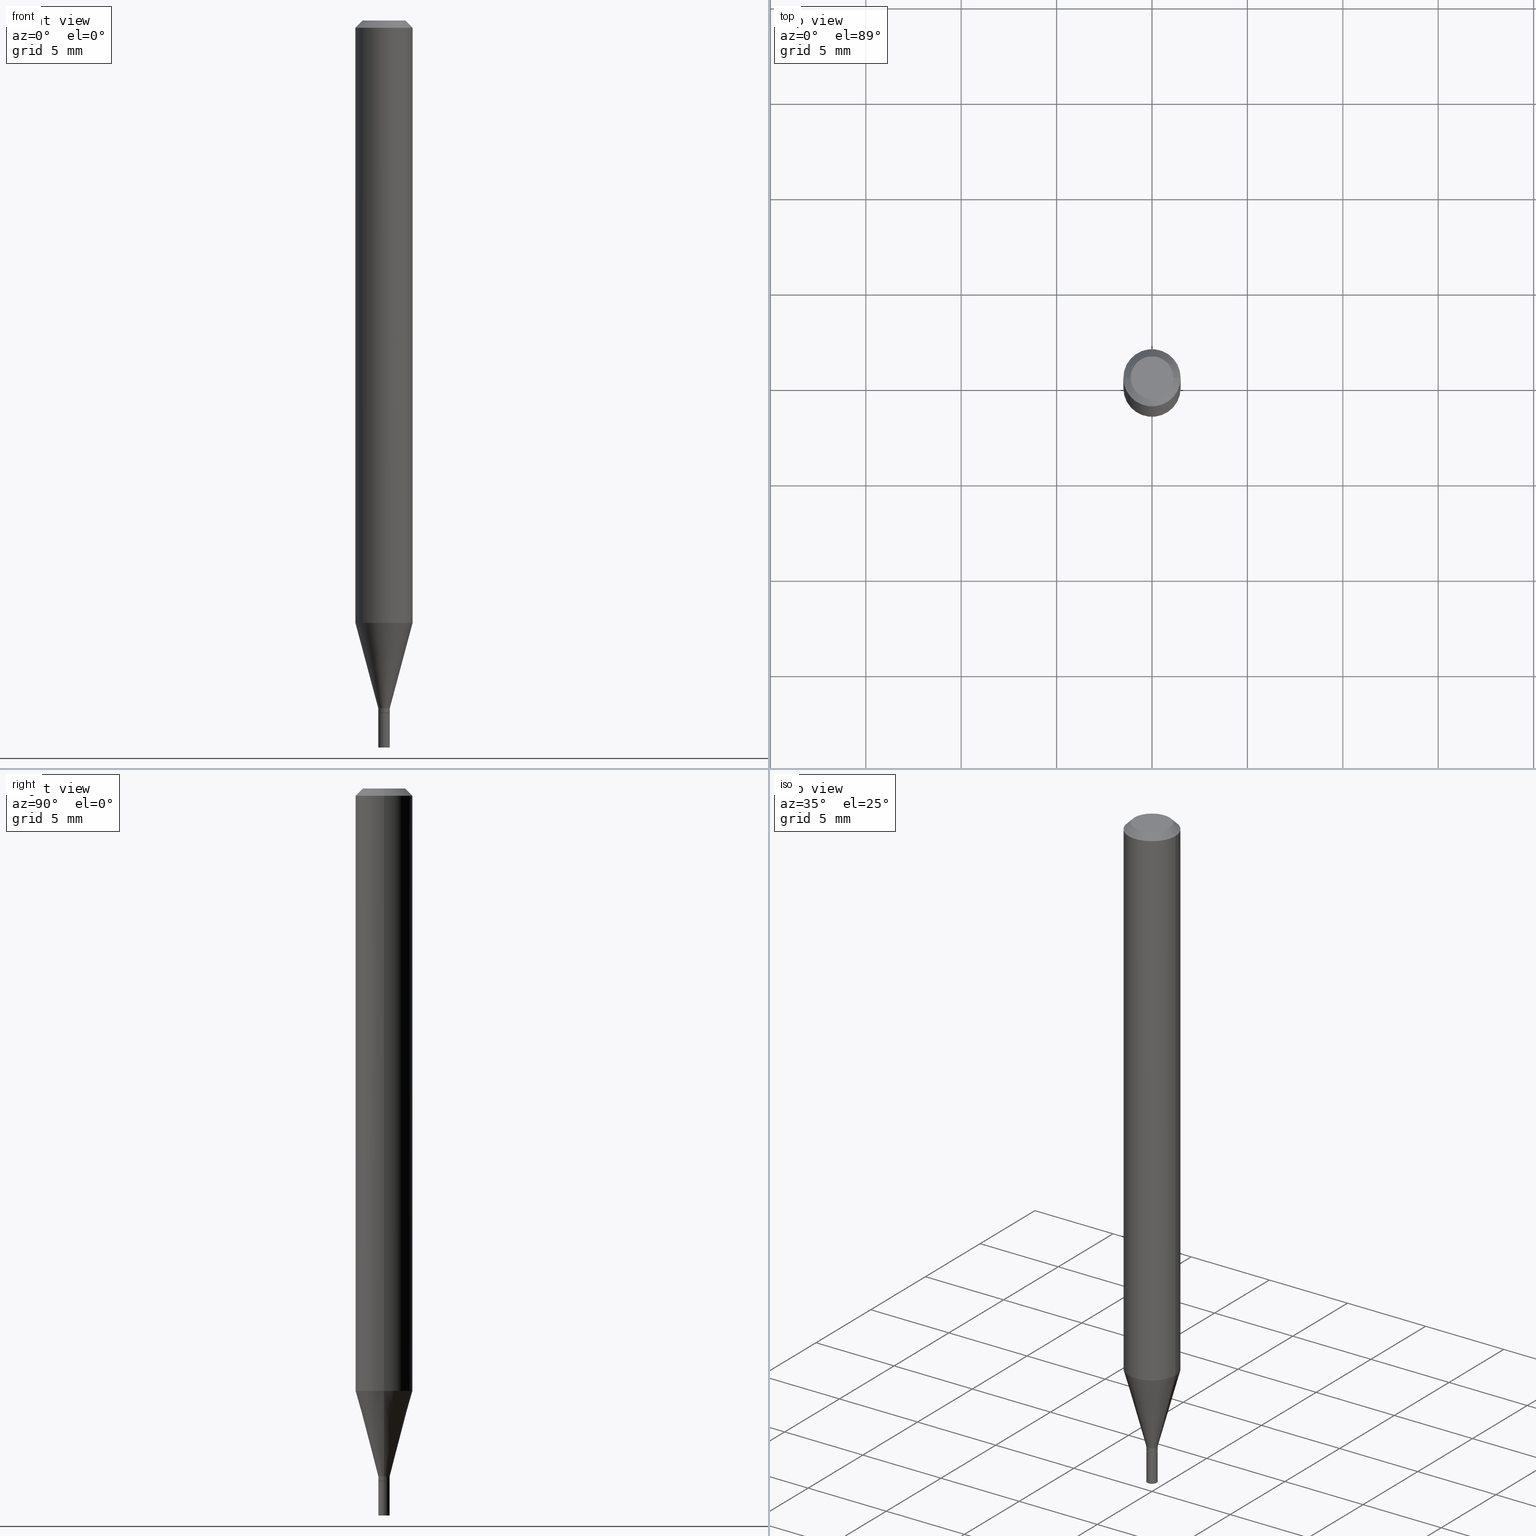
[diagram: canonical four-view strip — front | top / right | iso, engineering-drawing reading convention]
A machine part, canonical four-view strip (front | top / right | iso — engineering-drawing reading convention). The complete STEP part file that produces these views, byte-faithful:
ISO-10303-21;
HEADER;
FILE_DESCRIPTION (( 'STEP AP203' ),
    '1' );
FILE_NAME ('05059.STEP',
    '2024-03-14T17:38:54',
    ( '' ),
    ( '' ),
    'SwSTEP 2.0',
    'SolidWorks 2023',
    '' );
FILE_SCHEMA (( 'CONFIG_CONTROL_DESIGN' ));
ENDSEC;

DATA;
#1 = CARTESIAN_POINT ( 'NONE',  ( 0.000000000000000000, 0.000000000000000000, 0.000000000000000000 ) ) ;
#2 = AXIS2_PLACEMENT_3D ( 'NONE', #209, #389, #126 ) ;
#3 = CARTESIAN_POINT ( 'NONE',  ( 3.668203209277705088E-31, -5.237222008264718399E-17, -0.01499999999999999944 ) ) ;
#4 = EDGE_CURVE ( 'NONE', #16, #378, #286, .T. ) ;
#5 = DIRECTION ( 'NONE',  ( 2.445468806185136597E-29, -3.491481338843145583E-15, -1.000000000000000000 ) ) ;
#6 = ORIENTED_EDGE ( 'NONE', *, *, #326, .F. ) ;
#7 = AXIS2_PLACEMENT_3D ( 'NONE', #329, #450, #9 ) ;
#8 = APPROVAL_STATUS ( 'not_yet_approved' ) ;
#9 = DIRECTION ( 'NONE',  ( 1.000000000000000000, -6.982962677686254878E-15, 0.000000000000000000 ) ) ;
#10 = VERTEX_POINT ( 'NONE', #85 ) ;
#11 = PLANE ( 'NONE',  #124 ) ;
#12 = CIRCLE ( 'NONE', #111, 0.05904999999999999832 ) ;
#13 = AXIS2_PLACEMENT_3D ( 'NONE', #151, #75, #339 ) ;
#14 = DIRECTION ( 'NONE',  ( 1.000000000000000000, 0.000000000000000000, 0.000000000000000000 ) ) ;
#15 = EDGE_CURVE ( 'NONE', #361, #10, #283, .T. ) ;
#16 = VERTEX_POINT ( 'NONE', #396 ) ;
#17 = CC_DESIGN_PERSON_AND_ORGANIZATION_ASSIGNMENT ( #96, #131, ( #34 ) ) ;
#18 = DIRECTION ( 'NONE',  ( 1.000000000000000000, -6.982962677686266711E-15, 0.000000000000000000 ) ) ;
#19 = CARTESIAN_POINT ( 'NONE',  ( 0.000000000000000000, 0.000000000000000000, 0.000000000000000000 ) ) ;
#20 = CYLINDRICAL_SURFACE ( 'NONE', #311, 0.01180000000000000146 ) ;
#21 = AXIS2_PLACEMENT_3D ( 'NONE', #19, #155, #307 ) ;
#22 = CLOSED_SHELL ( 'NONE', ( #369, #247, #284, #332 ) ) ;
#23 = CIRCLE ( 'NONE', #325, 0.01180000000000000146 ) ;
#24 = COORDINATED_UNIVERSAL_TIME_OFFSET ( 5, 0, .BEHIND. ) ;
#25 = EDGE_CURVE ( 'NONE', #157, #327, #385, .T. ) ;
#26 = CARTESIAN_POINT ( 'NONE',  ( 0.05904999999999999832, -4.574846268510561447E-16, -0.01499999999999999944 ) ) ;
#27 = PERSON_AND_ORGANIZATION_ROLE ( 'design_supplier' ) ;
#28 = DIRECTION ( 'NONE',  ( 0.7071067811865503483, -7.319954787623265512E-15, -0.7071067811865445751 ) ) ;
#29 = VECTOR ( 'NONE', #432, 39.37007874015748143 ) ;
#30 = AXIS2_PLACEMENT_3D ( 'NONE', #276, #236, #238 ) ;
#31 = EDGE_LOOP ( 'NONE', ( #6, #174, #80, #295 ) ) ;
#32 = CARTESIAN_POINT ( 'NONE',  ( -0.01179999999999992340, -4.904086197851627524E-15, -1.428600000000000092 ) ) ;
#33 = ORIENTED_EDGE ( 'NONE', *, *, #249, .F. ) ;
#34 = PRODUCT_DEFINITION ( 'UNKNOWN', '', #354, #320 ) ;
#35 = CARTESIAN_POINT ( 'NONE',  ( -0.05904999999999999832, -3.919499955787072456E-15, -1.242760599342371153 ) ) ;
#36 = DIRECTION ( 'NONE',  ( -1.000000000000000000, 6.982962677686265922E-15, -4.876176775795935793E-29 ) ) ;
#37 =( NAMED_UNIT ( * ) SI_UNIT ( $, .STERADIAN. ) SOLID_ANGLE_UNIT ( ) );
#38 = EDGE_LOOP ( 'NONE', ( #107, #328 ) ) ;
#39 = DIRECTION ( 'NONE',  ( -2.445468806185136877E-29, 3.491481338843145188E-15, 1.000000000000000000 ) ) ;
#40 = EDGE_LOOP ( 'NONE', ( #374, #259 ) ) ;
#41 = AXIS2_PLACEMENT_3D ( 'NONE', #199, #341, #18 ) ;
#42 = EDGE_CURVE ( 'NONE', #220, #157, #160, .T. ) ;
#43 = CIRCLE ( 'NONE', #453, 0.05904999999999999832 ) ;
#44 = DIRECTION ( 'NONE',  ( -2.445468806185136597E-29, 3.491481338843145583E-15, 1.000000000000000000 ) ) ;
#45 = ORIENTED_EDGE ( 'NONE', *, *, #87, .F. ) ;
#46 = DIRECTION ( 'NONE',  ( 1.000000000000000000, -6.982962677686254878E-15, 0.000000000000000000 ) ) ;
#47 = DIRECTION ( 'NONE',  ( 1.000000000000000000, -6.982962677686263555E-15, 0.000000000000000000 ) ) ;
#48 = CARTESIAN_POINT ( 'NONE',  ( 3.039132279247712903E-29, -4.339075441253411949E-15, -1.242760599342371153 ) ) ;
#49 = DIRECTION ( 'NONE',  ( 1.000000000000000000, -6.982962677686263555E-15, 0.000000000000000000 ) ) ;
#50 = CARTESIAN_POINT ( 'NONE',  ( 0.000000000000000000, 0.000000000000000000, 0.000000000000000000 ) ) ;
#51 = CARTESIAN_POINT ( 'NONE',  ( -0.01180000000000000146, -5.029604951983037970E-15, -1.429100000000000037 ) ) ;
#52 = AXIS2_PLACEMENT_3D ( 'NONE', #411, #440, #95 ) ;
#53 = APPROVAL ( #76, 'UNSPECIFIED' ) ;
#54 = LINE ( 'NONE', #210, #29 ) ;
#55 = PRODUCT_DEFINITION_SHAPE ( 'NONE', 'NONE',  #34 ) ;
#56 = ORGANIZATION ( 'UNSPECIFIED', 'UNSPECIFIED', '' ) ;
#57 = DATE_AND_TIME ( #323, #318 ) ;
#58 = DIRECTION ( 'NONE',  ( -2.445468806185136597E-29, 3.491481338843145583E-15, 1.000000000000000000 ) ) ;
#59 = COORDINATED_UNIVERSAL_TIME_OFFSET ( 5, 0, .BEHIND. ) ;
#60 = EDGE_LOOP ( 'NONE', ( #33, #61, #268, #367 ) ) ;
#61 = ORIENTED_EDGE ( 'NONE', *, *, #280, .T. ) ;
#62 = CARTESIAN_POINT ( 'NONE',  ( -0.05904999999999999832, -1.776148345201690613E-15, -0.01499999999999999944 ) ) ;
#63 = APPROVAL_DATE_TIME ( #187, #164 ) ;
#64 = EDGE_LOOP ( 'NONE', ( #74, #324, #345, #303 ) ) ;
#65 = VERTEX_POINT ( 'NONE', #88 ) ;
#66 = ADVANCED_FACE ( 'NONE', ( #425 ), #358, .T. ) ;
#67 = DIRECTION ( 'NONE',  ( -2.445468806185136597E-29, 3.491481338843145583E-15, 1.000000000000000000 ) ) ;
#68 = CARTESIAN_POINT ( 'NONE',  ( 3.493596736516086700E-29, -4.987930240671318790E-15, -1.428600000000000092 ) ) ;
#69 = VERTEX_POINT ( 'NONE', #81 ) ;
#70 = APPLICATION_CONTEXT ( 'configuration controlled 3d designs of mechanical parts and assemblies' ) ;
#71 = EDGE_CURVE ( 'NONE', #10, #409, #12, .T. ) ;
#72 = CALENDAR_DATE ( 2024, 14, 3 ) ;
#73 = EDGE_LOOP ( 'NONE', ( #407, #105, #366, #221 ) ) ;
#74 = ORIENTED_EDGE ( 'NONE', *, *, #424, .T. ) ;
#75 = DIRECTION ( 'NONE',  ( -2.445468806185136597E-29, 3.491481338843145583E-15, 1.000000000000000000 ) ) ;
#76 = APPROVAL_STATUS ( 'not_yet_approved' ) ;
#77 = CIRCLE ( 'NONE', #97, 0.04404999999999999888 ) ;
#78 = ORIENTED_EDGE ( 'NONE', *, *, #258, .F. ) ;
#79 = DIRECTION ( 'NONE',  ( -1.000000000000000000, 6.982962677686266711E-15, 0.000000000000000000 ) ) ;
#80 = ORIENTED_EDGE ( 'NONE', *, *, #181, .T. ) ;
#81 = CARTESIAN_POINT ( 'NONE',  ( -0.01180000000000000146, -5.029604951983037970E-15, -1.500000000000000222 ) ) ;
#82 = APPROVAL_DATE_TIME ( #309, #53 ) ;
#83 = CONICAL_SURFACE ( 'NONE', #242, 0.01179999999999992166, 0.2617993877991502960 ) ;
#84 = LINE ( 'NONE', #200, #252 ) ;
#85 = CARTESIAN_POINT ( 'NONE',  ( 0.05904999999999999832, -4.647161662000212105E-16, -0.01499999999999999944 ) ) ;
#86 = PLANE ( 'NONE',  #145 ) ;
#87 = EDGE_CURVE ( 'NONE', #455, #106, #135, .T. ) ;
#88 = CARTESIAN_POINT ( 'NONE',  ( -0.04404999999999999888, 3.337856159934032167E-16, -1.195205392989733272E-16 ) ) ;
#89 = DIRECTION ( 'NONE',  ( -2.445468806185136597E-29, 3.491481338843145583E-15, 1.000000000000000000 ) ) ;
#90 = DIRECTION ( 'NONE',  ( -2.445468806185136597E-29, 3.491481338843145583E-15, 1.000000000000000000 ) ) ;
#91 = CARTESIAN_POINT ( 'NONE',  ( 0.05904999999999999832, -4.123439461173740327E-16, 2.879382386107500220E-30 ) ) ;
#92 = DIRECTION ( 'NONE',  ( -0.2588190451025216832, 5.211531920934551831E-15, 0.9659258262890679791 ) ) ;
#93 = ORIENTED_EDGE ( 'NONE', *, *, #401, .T. ) ;
#94 = CC_DESIGN_SECURITY_CLASSIFICATION ( #393, ( #354 ) ) ;
#95 = DIRECTION ( 'NONE',  ( 1.000000000000000000, -6.982962677686264344E-15, 0.000000000000000000 ) ) ;
#96 = PERSON_AND_ORGANIZATION ( #299, #56 ) ;
#97 = AXIS2_PLACEMENT_3D ( 'NONE', #194, #460, #197 ) ;
#98 = EDGE_LOOP ( 'NONE', ( #192, #337, #447, #217 ) ) ;
#99 = DIRECTION ( 'NONE',  ( 1.000000000000000000, -6.982962677686298265E-15, 0.000000000000000000 ) ) ;
#100 = CIRCLE ( 'NONE', #231, 0.01179999999999992340 ) ;
#101 = ADVANCED_FACE ( 'NONE', ( #122 ), #431, .F. ) ;
#102 = EDGE_LOOP ( 'NONE', ( #454, #230, #45, #265 ) ) ;
#103 = ORIENTED_EDGE ( 'NONE', *, *, #442, .T. ) ;
#104 = CARTESIAN_POINT ( 'NONE',  ( 8.239895959673289540E-17, 0.01179999999999501066, -1.429100000000000037 ) ) ;
#105 = ORIENTED_EDGE ( 'NONE', *, *, #465, .T. ) ;
#106 = VERTEX_POINT ( 'NONE', #51 ) ;
#107 = ORIENTED_EDGE ( 'NONE', *, *, #441, .F. ) ;
#108 = PERSON_AND_ORGANIZATION ( #299, #56 ) ;
#109 = ORIENTED_EDGE ( 'NONE', *, *, #125, .F. ) ;
#110 = PERSON_AND_ORGANIZATION_ROLE ( 'classification_officer' ) ;
#111 = AXIS2_PLACEMENT_3D ( 'NONE', #3, #165, #133 ) ;
#112 = LOCAL_TIME ( 13, 38, 54.00000000000000000, #59 ) ;
#113 = VERTEX_POINT ( 'NONE', #205 ) ;
#114 = FACE_OUTER_BOUND ( 'NONE', #60, .T. ) ;
#115 = CC_DESIGN_PERSON_AND_ORGANIZATION_ASSIGNMENT ( #301, #415, ( #262 ) ) ;
#116 = VECTOR ( 'NONE', #92, 39.37007874015748143 ) ;
#117 = DIRECTION ( 'NONE',  ( -2.445468806185136597E-29, 3.491481338843145583E-15, 1.000000000000000000 ) ) ;
#118 = DIRECTION ( 'NONE',  ( -2.445468806185136597E-29, 3.491481338843145583E-15, 1.000000000000000000 ) ) ;
#119 = DIRECTION ( 'NONE',  ( 1.000000000000000000, -6.982962677686264344E-15, 0.000000000000000000 ) ) ;
#120 = ADVANCED_FACE ( 'NONE', ( #351 ), #313, .T. ) ;
#121 = LOCAL_TIME ( 13, 38, 54.00000000000000000, #421 ) ;
#122 = FACE_OUTER_BOUND ( 'NONE', #292, .T. ) ;
#123 = SHAPE_DEFINITION_REPRESENTATION ( #55, #344 ) ;
#124 = AXIS2_PLACEMENT_3D ( 'NONE', #104, #176, #36 ) ;
#125 = EDGE_CURVE ( 'NONE', #65, #409, #434, .T. ) ;
#126 = DIRECTION ( 'NONE',  ( 1.000000000000000000, -6.982962677686264344E-15, 0.000000000000000000 ) ) ;
#127 = DIRECTION ( 'NONE',  ( 1.000000000000000000, -6.982962677686266711E-15, 4.876176775795935232E-29 ) ) ;
#128 = EDGE_CURVE ( 'NONE', #113, #452, #405, .T. ) ;
#129 = DIRECTION ( 'NONE',  ( -2.445468806185136877E-29, 3.491481338843145188E-15, 1.000000000000000000 ) ) ;
#130 = CC_DESIGN_APPROVAL ( #164, ( #34 ) ) ;
#131 = PERSON_AND_ORGANIZATION_ROLE ( 'creator' ) ;
#132 = DIRECTION ( 'NONE',  ( 1.000000000000000000, -6.982962677686254878E-15, 0.000000000000000000 ) ) ;
#133 = DIRECTION ( 'NONE',  ( 1.000000000000000000, -6.982962677686266711E-15, 0.000000000000000000 ) ) ;
#134 = ADVANCED_FACE ( 'NONE', ( #365 ), #382, .T. ) ;
#135 = CIRCLE ( 'NONE', #419, 0.01180000000000000146 ) ;
#136 = CARTESIAN_POINT ( 'NONE',  ( 0.01180000000000000146, -5.072074940937438417E-15, -1.429100000000000037 ) ) ;
#137 = AXIS2_PLACEMENT_3D ( 'NONE', #443, #170, #216 ) ;
#138 = APPROVAL_PERSON_ORGANIZATION ( #368, #53, #352 ) ;
#139 = FACE_OUTER_BOUND ( 'NONE', #225, .T. ) ;
#140 = DATE_AND_TIME ( #408, #112 ) ;
#141 = ORIENTED_EDGE ( 'NONE', *, *, #71, .F. ) ;
#142 = CC_DESIGN_DATE_AND_TIME_ASSIGNMENT ( #186, #226, ( #393 ) ) ;
#143 = ORIENTED_EDGE ( 'NONE', *, *, #249, .T. ) ;
#144 = LINE ( 'NONE', #296, #189 ) ;
#145 = AXIS2_PLACEMENT_3D ( 'NONE', #314, #245, #433 ) ;
#146 = CIRCLE ( 'NONE', #41, 0.05904999999999999832 ) ;
#147 = DIRECTION ( 'NONE',  ( 1.000000000000000000, -6.982962677686264344E-15, 0.000000000000000000 ) ) ;
#148 = FACE_OUTER_BOUND ( 'NONE', #38, .T. ) ;
#149 = ADVANCED_FACE ( 'NONE', ( #114 ), #198, .T. ) ;
#150 = EDGE_LOOP ( 'NONE', ( #254, #413 ) ) ;
#151 = CARTESIAN_POINT ( 'NONE',  ( 3.494819470919178941E-29, -4.989675981340739504E-15, -1.429100000000000037 ) ) ;
#152 = CARTESIAN_POINT ( 'NONE',  ( 0.000000000000000000, 0.000000000000000000, 0.000000000000000000 ) ) ;
#153 = AXIS2_PLACEMENT_3D ( 'NONE', #50, #167, #316 ) ;
#154 = EDGE_LOOP ( 'NONE', ( #214, #255, #406, #109 ) ) ;
#155 = DIRECTION ( 'NONE',  ( -2.445468806185136597E-29, 3.491481338843145583E-15, 1.000000000000000000 ) ) ;
#156 = EDGE_CURVE ( 'NONE', #327, #10, #340, .T. ) ;
#157 = VERTEX_POINT ( 'NONE', #207 ) ;
#158 = CARTESIAN_POINT ( 'NONE',  ( 3.494819470919178941E-29, -4.989675981340739504E-15, -1.429100000000000037 ) ) ;
#159 = CIRCLE ( 'NONE', #373, 0.01130000000000000102 ) ;
#160 = CIRCLE ( 'NONE', #2, 0.01179999999999992166 ) ;
#161 = CARTESIAN_POINT ( 'NONE',  ( 0.01180000000000000146, -5.319620967861417089E-15, -1.500000000000000222 ) ) ;
#162 = LOCAL_TIME ( 13, 38, 54.00000000000000000, #24 ) ;
#163 = CC_DESIGN_PERSON_AND_ORGANIZATION_ASSIGNMENT ( #108, #395, ( #354 ) ) ;
#164 = APPROVAL ( #459, 'UNSPECIFIED' ) ;
#165 = DIRECTION ( 'NONE',  ( -2.445468806185136597E-29, 3.491481338843145583E-15, 1.000000000000000000 ) ) ;
#166 = CARTESIAN_POINT ( 'NONE',  ( 0.01179999999999992340, -5.070329200268016125E-15, -1.428600000000000092 ) ) ;
#167 = DIRECTION ( 'NONE',  ( -2.445468806185136597E-29, 3.491481338843145583E-15, 1.000000000000000000 ) ) ;
#168 = AXIS2_PLACEMENT_3D ( 'NONE', #397, #172, #147 ) ;
#169 = VECTOR ( 'NONE', #466, 39.37007874015748143 ) ;
#170 = DIRECTION ( 'NONE',  ( -2.445468806185136597E-29, 3.491481338843145583E-15, 1.000000000000000000 ) ) ;
#171 = DIRECTION ( 'NONE',  ( 1.000000000000000000, -6.982962677686265133E-15, 0.000000000000000000 ) ) ;
#172 = DIRECTION ( 'NONE',  ( -2.445468806185136597E-29, 3.491481338843145583E-15, 1.000000000000000000 ) ) ;
#173 = EDGE_CURVE ( 'NONE', #452, #220, #347, .T. ) ;
#174 = ORIENTED_EDGE ( 'NONE', *, *, #222, .T. ) ;
#175 = EDGE_LOOP ( 'NONE', ( #451, #218, #321, #78 ) ) ;
#176 = DIRECTION ( 'NONE',  ( 2.438088387897960049E-29, -3.491481338843145188E-15, -1.000000000000000000 ) ) ;
#177 =( GEOMETRIC_REPRESENTATION_CONTEXT ( 3 ) GLOBAL_UNCERTAINTY_ASSIGNED_CONTEXT ( ( #357 ) ) GLOBAL_UNIT_ASSIGNED_CONTEXT ( ( #267, #193, #37 ) ) REPRESENTATION_CONTEXT ( 'NONE', 'WORKASPACE' ) );
#178 = FACE_OUTER_BOUND ( 'NONE', #98, .T. ) ;
#179 = ORIENTED_EDGE ( 'NONE', *, *, #128, .T. ) ;
#180 = ORIENTED_EDGE ( 'NONE', *, *, #42, .T. ) ;
#181 = EDGE_CURVE ( 'NONE', #184, #455, #54, .T. ) ;
#182 = CARTESIAN_POINT ( 'NONE',  ( 3.668203209277705088E-31, -5.237222008264718399E-17, -0.01499999999999999944 ) ) ;
#183 = CARTESIAN_POINT ( 'NONE',  ( -0.01130000000000000102, -4.909384652199849138E-15, -1.429100000000000037 ) ) ;
#184 = VERTEX_POINT ( 'NONE', #161 ) ;
#185 = CARTESIAN_POINT ( 'NONE',  ( 0.05904999999999999832, -4.751419387370785291E-15, -1.242760599342371153 ) ) ;
#186 = DATE_AND_TIME ( #72, #342 ) ;
#187 = DATE_AND_TIME ( #370, #121 ) ;
#188 = CIRCLE ( 'NONE', #13, 0.01180000000000000146 ) ;
#189 = VECTOR ( 'NONE', #39, 39.37007874015748143 ) ;
#190 = ORIENTED_EDGE ( 'NONE', *, *, #125, .T. ) ;
#191 = ADVANCED_FACE ( 'NONE', ( #359 ), #86, .F. ) ;
#192 = ORIENTED_EDGE ( 'NONE', *, *, #173, .F. ) ;
#193 =( NAMED_UNIT ( * ) PLANE_ANGLE_UNIT ( ) SI_UNIT ( $, .RADIAN. ) );
#194 = CARTESIAN_POINT ( 'NONE',  ( 2.922837505540584805E-45, -4.173037325708263829E-31, -1.195205392989710839E-16 ) ) ;
#195 = ADVANCED_FACE ( 'NONE', ( #390 ), #83, .T. ) ;
#196 = CYLINDRICAL_SURFACE ( 'NONE', #21, 0.01180000000000000146 ) ;
#197 = DIRECTION ( 'NONE',  ( 1.000000000000000000, -6.982962677686265922E-15, 4.888540261209747396E-29 ) ) ;
#198 = CYLINDRICAL_SURFACE ( 'NONE', #240, 0.05904999999999999832 ) ;
#199 = CARTESIAN_POINT ( 'NONE',  ( 3.668203209277705088E-31, -5.237222008264718399E-17, -0.01499999999999999944 ) ) ;
#200 = CARTESIAN_POINT ( 'NONE',  ( 0.01179999999999992166, -8.239895959669739666E-17, 5.753888595439165364E-31 ) ) ;
#201 = DIRECTION ( 'NONE',  ( 0.2588190451025216832, 1.565188264969619798E-15, 0.9659258262890679791 ) ) ;
#202 = FACE_OUTER_BOUND ( 'NONE', #73, .T. ) ;
#203 = DIRECTION ( 'NONE',  ( -1.000000000000000000, 6.982962677686265922E-15, -4.876176775795935793E-29 ) ) ;
#204 = AXIS2_PLACEMENT_3D ( 'NONE', #182, #5, #319 ) ;
#205 = CARTESIAN_POINT ( 'NONE',  ( -0.01130000000000000102, -4.906735425025737936E-15, -1.429100000000000037 ) ) ;
#206 = CLOSED_SHELL ( 'NONE', ( #120, #422, #232, #66, #195, #134, #149, #414, #101, #191, #297, #404 ) ) ;
#207 = CARTESIAN_POINT ( 'NONE',  ( 0.01179999999999992166, -5.037160127549005190E-15, -1.419100000000000250 ) ) ;
#208 = ORIENTED_EDGE ( 'NONE', *, *, #270, .F. ) ;
#209 = CARTESIAN_POINT ( 'NONE',  ( 3.470364782857327956E-29, -4.954761167952307855E-15, -1.419100000000000250 ) ) ;
#210 = CARTESIAN_POINT ( 'NONE',  ( 0.01180000000000000146, -8.239895959669796365E-17, 5.753888595439204775E-31 ) ) ;
#211 = VECTOR ( 'NONE', #129, 39.37007874015748143 ) ;
#212 = CONICAL_SURFACE ( 'NONE', #204, 0.05904999999999999832, 0.7853981633974523868 ) ;
#213 = DIRECTION ( 'NONE',  ( -2.445468806185136597E-29, 3.491481338843145583E-15, 1.000000000000000000 ) ) ;
#214 = ORIENTED_EDGE ( 'NONE', *, *, #375, .F. ) ;
#215 = EDGE_CURVE ( 'NONE', #106, #455, #188, .T. ) ;
#216 = DIRECTION ( 'NONE',  ( 1.000000000000000000, -6.982962677686254878E-15, 0.000000000000000000 ) ) ;
#217 = ORIENTED_EDGE ( 'NONE', *, *, #42, .F. ) ;
#218 = ORIENTED_EDGE ( 'NONE', *, *, #173, .T. ) ;
#219 = DATE_TIME_ROLE ( 'creation_date' ) ;
#220 = VERTEX_POINT ( 'NONE', #243 ) ;
#221 = ORIENTED_EDGE ( 'NONE', *, *, #362, .F. ) ;
#222 = EDGE_CURVE ( 'NONE', #69, #184, #391, .T. ) ;
#223 = AXIS2_PLACEMENT_3D ( 'NONE', #1, #90, #127 ) ;
#224 = MANIFOLD_SOLID_BREP ( 'Body-Move/Copy2[2]', #206 ) ;
#225 = EDGE_LOOP ( 'NONE', ( #381, #336, #190, #380 ) ) ;
#226 = DATE_TIME_ROLE ( 'classification_date' ) ;
#227 = APPLICATION_PROTOCOL_DEFINITION ( 'international standard', 'config_control_design', 1994, #330 ) ;
#228 = ORIENTED_EDGE ( 'NONE', *, *, #280, .F. ) ;
#229 = AXIS2_PLACEMENT_3D ( 'NONE', #446, #213, #364 ) ;
#230 = ORIENTED_EDGE ( 'NONE', *, *, #326, .T. ) ;
#231 = AXIS2_PLACEMENT_3D ( 'NONE', #420, #386, #49 ) ;
#232 = ADVANCED_FACE ( 'NONE', ( #346 ), #427, .T. ) ;
#233 = CARTESIAN_POINT ( 'NONE',  ( 0.000000000000000000, 0.000000000000000000, 0.000000000000000000 ) ) ;
#234 = DIRECTION ( 'NONE',  ( 1.000000000000000000, -6.982962677686265133E-15, 0.000000000000000000 ) ) ;
#235 = LENGTH_MEASURE_WITH_UNIT ( LENGTH_MEASURE( 0.02539999999999999897 ), #423 );
#236 = DIRECTION ( 'NONE',  ( -2.438088387897960049E-29, 3.491481338843145188E-15, 1.000000000000000000 ) ) ;
#237 = EDGE_LOOP ( 'NONE', ( #333, #179, #208, #271 ) ) ;
#238 = DIRECTION ( 'NONE',  ( 1.000000000000000000, -6.982962677686265922E-15, 4.876176775795935793E-29 ) ) ;
#239 = ORIENTED_EDGE ( 'NONE', *, *, #156, .F. ) ;
#240 = AXIS2_PLACEMENT_3D ( 'NONE', #274, #118, #338 ) ;
#241 = FACE_OUTER_BOUND ( 'NONE', #102, .T. ) ;
#242 = AXIS2_PLACEMENT_3D ( 'NONE', #353, #89, #119 ) ;
#243 = CARTESIAN_POINT ( 'NONE',  ( -0.01179999999999992166, -4.395208540459845312E-15, -1.419100000000000250 ) ) ;
#244 = CARTESIAN_POINT ( 'NONE',  ( 3.075995059520799729E-16, 0.04404999999999999888, -2.135600226255260954E-16 ) ) ;
#245 = DIRECTION ( 'NONE',  ( -2.438088387897960049E-29, 3.491481338843145188E-15, 1.000000000000000000 ) ) ;
#246 = CARTESIAN_POINT ( 'NONE',  ( -0.05904999999999999832, 3.599717260347268549E-16, -0.01499999999999999944 ) ) ;
#247 = ADVANCED_FACE ( 'NONE', ( #148 ), #457, .F. ) ;
#248 = CARTESIAN_POINT ( 'NONE',  ( 0.01179999999999992166, -5.037160127549005190E-15, -1.419100000000000250 ) ) ;
#249 = EDGE_CURVE ( 'NONE', #410, #409, #464, .T. ) ;
#250 = CARTESIAN_POINT ( 'NONE',  ( 3.668203209277704895E-29, -5.237222008264718177E-15, -1.500000000000000222 ) ) ;
#251 = AXIS2_PLACEMENT_3D ( 'NONE', #158, #117, #46 ) ;
#252 = VECTOR ( 'NONE', #310, 39.37007874015748143 ) ;
#253 = CARTESIAN_POINT ( 'NONE',  ( 2.922837505540584805E-45, -4.173037325708263829E-31, -1.195205392989710839E-16 ) ) ;
#254 = ORIENTED_EDGE ( 'NONE', *, *, #387, .F. ) ;
#255 = ORIENTED_EDGE ( 'NONE', *, *, #15, .T. ) ;
#256 = CARTESIAN_POINT ( 'NONE',  ( 0.04404999999999999888, -3.798447818264462051E-16, -1.195205392989686680E-16 ) ) ;
#257 = APPROVAL_ROLE ( '' ) ;
#258 = EDGE_CURVE ( 'NONE', #378, #157, #84, .T. ) ;
#259 = ORIENTED_EDGE ( 'NONE', *, *, #215, .T. ) ;
#260 = EDGE_LOOP ( 'NONE', ( #298, #180, #261, #228 ) ) ;
#261 = ORIENTED_EDGE ( 'NONE', *, *, #25, .T. ) ;
#262 = PRODUCT ( '05059', '05059', '', ( #264 ) ) ;
#263 = VECTOR ( 'NONE', #201, 39.37007874015748143 ) ;
#264 = MECHANICAL_CONTEXT ( 'NONE', #70, 'mechanical' ) ;
#265 = ORIENTED_EDGE ( 'NONE', *, *, #181, .F. ) ;
#266 = COORDINATED_UNIVERSAL_TIME_OFFSET ( 5, 0, .BEHIND. ) ;
#267 =( CONVERSION_BASED_UNIT ( 'INCH', #235 ) LENGTH_UNIT ( ) NAMED_UNIT ( #349 ) );
#268 = ORIENTED_EDGE ( 'NONE', *, *, #156, .T. ) ;
#269 = DIRECTION ( 'NONE',  ( -2.445468806185136597E-29, 3.491481338843145583E-15, 1.000000000000000000 ) ) ;
#270 = EDGE_CURVE ( 'NONE', #378, #452, #100, .T. ) ;
#271 = ORIENTED_EDGE ( 'NONE', *, *, #4, .F. ) ;
#272 = APPLICATION_PROTOCOL_DEFINITION ( 'international standard', 'config_control_design', 1994, #70 ) ;
#273 = DIRECTION ( 'NONE',  ( -2.445468806185136597E-29, 3.491481338843145583E-15, 1.000000000000000000 ) ) ;
#274 = CARTESIAN_POINT ( 'NONE',  ( 0.000000000000000000, 0.000000000000000000, 0.000000000000000000 ) ) ;
#275 = CIRCLE ( 'NONE', #52, 0.01179999999999992166 ) ;
#276 = CARTESIAN_POINT ( 'NONE',  ( 3.576687321579069994E-29, -5.368277968210015545E-15, -1.500000000000000222 ) ) ;
#277 = APPROVAL_ROLE ( '' ) ;
#278 = CARTESIAN_POINT ( 'NONE',  ( 3.668203209277704895E-29, -5.237222008264718177E-15, -1.500000000000000222 ) ) ;
#279 = CC_DESIGN_PERSON_AND_ORGANIZATION_ASSIGNMENT ( #356, #27, ( #354 ) ) ;
#280 = EDGE_CURVE ( 'NONE', #410, #327, #43, .T. ) ;
#281 = AXIS2_PLACEMENT_3D ( 'NONE', #152, #305, #14 ) ;
#282 = CIRCLE ( 'NONE', #348, 0.01179999999999992340 ) ;
#283 = LINE ( 'NONE', #26, #317 ) ;
#284 = ADVANCED_FACE ( 'NONE', ( #377 ), #196, .T. ) ;
#285 = DIRECTION ( 'NONE',  ( 2.438088387897960049E-29, -3.491481338843145188E-15, -1.000000000000000000 ) ) ;
#286 = LINE ( 'NONE', #437, #304 ) ;
#287 = CARTESIAN_POINT ( 'NONE',  ( -0.01179999999999992166, 8.384404281969126531E-17, -5.804343406500750480E-31 ) ) ;
#288 = CARTESIAN_POINT ( 'NONE',  ( -0.01179999999999992166, -4.870917125132617379E-15, -1.419100000000000250 ) ) ;
#289 = SECURITY_CLASSIFICATION_LEVEL ( 'unclassified' ) ;
#290 = CYLINDRICAL_SURFACE ( 'NONE', #229, 0.01179999999999992166 ) ;
#291 = CONICAL_SURFACE ( 'NONE', #7, 0.01130000000000000102, 0.7853981633974718157 ) ;
#292 = EDGE_LOOP ( 'NONE', ( #103, #416 ) ) ;
#293 = LINE ( 'NONE', #288, #116 ) ;
#294 = APPROVAL_DATE_TIME ( #140, #449 ) ;
#295 = ORIENTED_EDGE ( 'NONE', *, *, #215, .F. ) ;
#296 = CARTESIAN_POINT ( 'NONE',  ( -0.01180000000000000146, 8.384404281969183231E-17, -5.804343406500789016E-31 ) ) ;
#297 = ADVANCED_FACE ( 'NONE', ( #202 ), #399, .T. ) ;
#298 = ORIENTED_EDGE ( 'NONE', *, *, #458, .F. ) ;
#299 = PERSON ( 'UNSPECIFIED', 'UNSPECIFIED', 'UNSPECIFIED', ('UNSPECIFIED'), ('UNSPECIFIED'), ('UNSPECIFIED') ) ;
#300 = CARTESIAN_POINT ( 'NONE',  ( 3.668203209277705088E-31, -5.237222008264718399E-17, -0.01499999999999999944 ) ) ;
#301 = PERSON_AND_ORGANIZATION ( #299, #56 ) ;
#302 = DIRECTION ( 'NONE',  ( 1.000000000000000000, -6.982962677686298265E-15, 0.000000000000000000 ) ) ;
#303 = ORIENTED_EDGE ( 'NONE', *, *, #25, .F. ) ;
#304 = VECTOR ( 'NONE', #388, 39.37007874015748143 ) ;
#305 = DIRECTION ( 'NONE',  ( 0.000000000000000000, 0.000000000000000000, 1.000000000000000000 ) ) ;
#306 = DIRECTION ( 'NONE',  ( 2.445468806185136597E-29, -3.491481338843145583E-15, -1.000000000000000000 ) ) ;
#307 = DIRECTION ( 'NONE',  ( 1.000000000000000000, -6.982962677686267499E-15, 4.876176775795935793E-29 ) ) ;
#308 = DIRECTION ( 'NONE',  ( -2.445468806185136597E-29, 3.491481338843145583E-15, 1.000000000000000000 ) ) ;
#309 = DATE_AND_TIME ( #426, #162 ) ;
#310 = DIRECTION ( 'NONE',  ( -2.445468806185136877E-29, 3.491481338843145188E-15, 1.000000000000000000 ) ) ;
#311 = AXIS2_PLACEMENT_3D ( 'NONE', #233, #273, #417 ) ;
#312 = EDGE_CURVE ( 'NONE', #409, #10, #146, .T. ) ;
#313 = CYLINDRICAL_SURFACE ( 'NONE', #223, 0.01179999999999992166 ) ;
#314 = CARTESIAN_POINT ( 'NONE',  ( 3.494819470919178941E-29, -4.989675981340739504E-15, -1.429100000000000037 ) ) ;
#315 = CARTESIAN_POINT ( 'NONE',  ( 3.494819470919178941E-29, -4.989675981340739504E-15, -1.429100000000000037 ) ) ;
#316 = DIRECTION ( 'NONE',  ( 1.000000000000000000, -6.982962677686266711E-15, 4.876176775795936353E-29 ) ) ;
#317 = VECTOR ( 'NONE', #28, 39.37007874015748854 ) ;
#318 = LOCAL_TIME ( 13, 38, 54.00000000000000000, #400 ) ;
#319 = DIRECTION ( 'NONE',  ( -1.000000000000000000, 6.982962677686266711E-15, 0.000000000000000000 ) ) ;
#320 = DESIGN_CONTEXT ( 'detailed design', #330, 'design' ) ;
#321 = ORIENTED_EDGE ( 'NONE', *, *, #424, .F. ) ;
#322 = FACE_OUTER_BOUND ( 'NONE', #237, .T. ) ;
#323 = CALENDAR_DATE ( 2024, 14, 3 ) ;
#324 = ORIENTED_EDGE ( 'NONE', *, *, #458, .T. ) ;
#325 = AXIS2_PLACEMENT_3D ( 'NONE', #250, #398, #99 ) ;
#326 = EDGE_CURVE ( 'NONE', #69, #106, #144, .T. ) ;
#327 = VERTEX_POINT ( 'NONE', #185 ) ;
#328 = ORIENTED_EDGE ( 'NONE', *, *, #222, .F. ) ;
#329 = CARTESIAN_POINT ( 'NONE',  ( 3.494819470919178941E-29, -4.989675981340739504E-15, -1.429100000000000037 ) ) ;
#330 = APPLICATION_CONTEXT ( 'configuration controlled 3d designs of mechanical parts and assemblies' ) ;
#331 = FACE_OUTER_BOUND ( 'NONE', #40, .T. ) ;
#332 = ADVANCED_FACE ( 'NONE', ( #331 ), #11, .F. ) ;
#333 = ORIENTED_EDGE ( 'NONE', *, *, #387, .T. ) ;
#334 = APPROVAL_PERSON_ORGANIZATION ( #456, #164, #277 ) ;
#335 = AXIS2_PLACEMENT_3D ( 'NONE', #253, #58, #363 ) ;
#336 = ORIENTED_EDGE ( 'NONE', *, *, #442, .F. ) ;
#337 = ORIENTED_EDGE ( 'NONE', *, *, #362, .T. ) ;
#338 = DIRECTION ( 'NONE',  ( 1.000000000000000000, -6.982962677686266711E-15, 4.876176775795936353E-29 ) ) ;
#339 = DIRECTION ( 'NONE',  ( 1.000000000000000000, -6.982962677686298265E-15, 0.000000000000000000 ) ) ;
#340 = LINE ( 'NONE', #91, #211 ) ;
#341 = DIRECTION ( 'NONE',  ( -2.445468806185136597E-29, 3.491481338843145583E-15, 1.000000000000000000 ) ) ;
#342 = LOCAL_TIME ( 13, 38, 54.00000000000000000, #266 ) ;
#343 = DIRECTION ( 'NONE',  ( -2.445468806185136597E-29, 3.491481338843145583E-15, 1.000000000000000000 ) ) ;
#344 = ADVANCED_BREP_SHAPE_REPRESENTATION ( '05059', ( #384, #224, #281 ), #177 ) ;
#345 = ORIENTED_EDGE ( 'NONE', *, *, #401, .F. ) ;
#346 = FACE_OUTER_BOUND ( 'NONE', #154, .T. ) ;
#347 = LINE ( 'NONE', #287, #169 ) ;
#348 = AXIS2_PLACEMENT_3D ( 'NONE', #68, #269, #47 ) ;
#349 = DIMENSIONAL_EXPONENTS ( 1.000000000000000000, 0.000000000000000000, 0.000000000000000000, 0.000000000000000000, 0.000000000000000000, 0.000000000000000000, 0.000000000000000000 ) ;
#350 = DIRECTION ( 'NONE',  ( -2.445468806185136597E-29, 3.491481338843145583E-15, 1.000000000000000000 ) ) ;
#351 = FACE_OUTER_BOUND ( 'NONE', #175, .T. ) ;
#352 = APPROVAL_ROLE ( '' ) ;
#353 = CARTESIAN_POINT ( 'NONE',  ( 3.470364782857327956E-29, -4.954761167952307855E-15, -1.419100000000000250 ) ) ;
#354 = PRODUCT_DEFINITION_FORMATION_WITH_SPECIFIED_SOURCE ( 'ANY', '', #262, .NOT_KNOWN. ) ;
#355 = CARTESIAN_POINT ( 'NONE',  ( 3.494819470919178941E-29, -4.989675981340739504E-15, -1.429100000000000037 ) ) ;
#356 = PERSON_AND_ORGANIZATION ( #299, #56 ) ;
#357 = UNCERTAINTY_MEASURE_WITH_UNIT (LENGTH_MEASURE( 1.000000000000000082E-05 ), #267, 'distance_accuracy_value', 'NONE');
#358 = CYLINDRICAL_SURFACE ( 'NONE', #153, 0.05904999999999999832 ) ;
#359 = FACE_OUTER_BOUND ( 'NONE', #150, .T. ) ;
#360 = AXIS2_PLACEMENT_3D ( 'NONE', #278, #44, #302 ) ;
#361 = VERTEX_POINT ( 'NONE', #256 ) ;
#362 = EDGE_CURVE ( 'NONE', #452, #378, #282, .T. ) ;
#363 = DIRECTION ( 'NONE',  ( 1.000000000000000000, -6.982962677686265922E-15, 4.888540261209747396E-29 ) ) ;
#364 = DIRECTION ( 'NONE',  ( 1.000000000000000000, -6.982962677686266711E-15, 4.876176775795935232E-29 ) ) ;
#365 = FACE_OUTER_BOUND ( 'NONE', #260, .T. ) ;
#366 = ORIENTED_EDGE ( 'NONE', *, *, #4, .T. ) ;
#367 = ORIENTED_EDGE ( 'NONE', *, *, #312, .F. ) ;
#368 = PERSON_AND_ORGANIZATION ( #299, #56 ) ;
#369 = ADVANCED_FACE ( 'NONE', ( #241 ), #20, .T. ) ;
#370 = CALENDAR_DATE ( 2024, 14, 3 ) ;
#371 = EDGE_LOOP ( 'NONE', ( #93, #143, #141, #239 ) ) ;
#372 = CIRCLE ( 'NONE', #430, 0.05904999999999999832 ) ;
#373 = AXIS2_PLACEMENT_3D ( 'NONE', #315, #350, #132 ) ;
#374 = ORIENTED_EDGE ( 'NONE', *, *, #87, .T. ) ;
#375 = EDGE_CURVE ( 'NONE', #361, #65, #77, .T. ) ;
#376 = APPROVAL_PERSON_ORGANIZATION ( #403, #449, #257 ) ;
#377 = FACE_OUTER_BOUND ( 'NONE', #31, .T. ) ;
#378 = VERTEX_POINT ( 'NONE', #166 ) ;
#379 = CARTESIAN_POINT ( 'NONE',  ( -0.05904999999999999832, 4.195754854663391478E-16, -2.904631170795521892E-30 ) ) ;
#380 = ORIENTED_EDGE ( 'NONE', *, *, #312, .T. ) ;
#381 = ORIENTED_EDGE ( 'NONE', *, *, #15, .F. ) ;
#382 = CONICAL_SURFACE ( 'NONE', #168, 0.01179999999999992166, 0.2617993877991502960 ) ;
#383 = VECTOR ( 'NONE', #448, 39.37007874015748143 ) ;
#384 = MANIFOLD_SOLID_BREP ( 'Body-Move/Copy2[1]', #22 ) ;
#385 = LINE ( 'NONE', #248, #263 ) ;
#386 = DIRECTION ( 'NONE',  ( -2.445468806185136597E-29, 3.491481338843145583E-15, 1.000000000000000000 ) ) ;
#387 = EDGE_CURVE ( 'NONE', #16, #113, #159, .T. ) ;
#388 = DIRECTION ( 'NONE',  ( 0.7071067811865642261, -2.468850131082431399E-15, 0.7071067811865309194 ) ) ;
#389 = DIRECTION ( 'NONE',  ( -2.445468806185136597E-29, 3.491481338843145583E-15, 1.000000000000000000 ) ) ;
#390 = FACE_OUTER_BOUND ( 'NONE', #64, .T. ) ;
#391 = CIRCLE ( 'NONE', #360, 0.01180000000000000146 ) ;
#392 = CC_DESIGN_DATE_AND_TIME_ASSIGNMENT ( #57, #219, ( #34 ) ) ;
#393 = SECURITY_CLASSIFICATION ( '', '', #289 ) ;
#394 = DIRECTION ( 'NONE',  ( -0.7071067811865503483, 2.468850131082286643E-15, -0.7071067811865445751 ) ) ;
#395 = PERSON_AND_ORGANIZATION_ROLE ( 'creator' ) ;
#396 = CARTESIAN_POINT ( 'NONE',  ( 0.01130000000000000102, -5.068583459598594621E-15, -1.429100000000000037 ) ) ;
#397 = CARTESIAN_POINT ( 'NONE',  ( 3.470364782857327956E-29, -4.954761167952307855E-15, -1.419100000000000250 ) ) ;
#398 = DIRECTION ( 'NONE',  ( -2.445468806185136597E-29, 3.491481338843145583E-15, 1.000000000000000000 ) ) ;
#399 = CONICAL_SURFACE ( 'NONE', #251, 0.01130000000000000102, 0.7853981633974718157 ) ;
#400 = COORDINATED_UNIVERSAL_TIME_OFFSET ( 5, 0, .BEHIND. ) ;
#401 = EDGE_CURVE ( 'NONE', #327, #410, #372, .T. ) ;
#402 = CIRCLE ( 'NONE', #137, 0.01130000000000000102 ) ;
#403 = PERSON_AND_ORGANIZATION ( #299, #56 ) ;
#404 = ADVANCED_FACE ( 'NONE', ( #178 ), #290, .T. ) ;
#405 = LINE ( 'NONE', #183, #383 ) ;
#406 = ORIENTED_EDGE ( 'NONE', *, *, #71, .T. ) ;
#407 = ORIENTED_EDGE ( 'NONE', *, *, #128, .F. ) ;
#408 = CALENDAR_DATE ( 2024, 14, 3 ) ;
#409 = VERTEX_POINT ( 'NONE', #62 ) ;
#410 = VERTEX_POINT ( 'NONE', #35 ) ;
#411 = CARTESIAN_POINT ( 'NONE',  ( 3.470364782857327956E-29, -4.954761167952307855E-15, -1.419100000000000250 ) ) ;
#412 = CC_DESIGN_PERSON_AND_ORGANIZATION_ASSIGNMENT ( #438, #110, ( #393 ) ) ;
#413 = ORIENTED_EDGE ( 'NONE', *, *, #465, .F. ) ;
#414 = ADVANCED_FACE ( 'NONE', ( #139 ), #212, .T. ) ;
#415 = PERSON_AND_ORGANIZATION_ROLE ( 'design_owner' ) ;
#416 = ORIENTED_EDGE ( 'NONE', *, *, #375, .T. ) ;
#417 = DIRECTION ( 'NONE',  ( 1.000000000000000000, -6.982962677686267499E-15, 4.876176775795935793E-29 ) ) ;
#418 = AXIS2_PLACEMENT_3D ( 'NONE', #300, #306, #79 ) ;
#419 = AXIS2_PLACEMENT_3D ( 'NONE', #355, #308, #462 ) ;
#420 = CARTESIAN_POINT ( 'NONE',  ( 3.493596736516086700E-29, -4.987930240671318790E-15, -1.428600000000000092 ) ) ;
#421 = COORDINATED_UNIVERSAL_TIME_OFFSET ( 5, 0, .BEHIND. ) ;
#422 = ADVANCED_FACE ( 'NONE', ( #322 ), #291, .T. ) ;
#423 =( LENGTH_UNIT ( ) NAMED_UNIT ( * ) SI_UNIT ( $, .METRE. ) );
#424 = EDGE_CURVE ( 'NONE', #157, #220, #275, .T. ) ;
#425 = FACE_OUTER_BOUND ( 'NONE', #371, .T. ) ;
#426 = CALENDAR_DATE ( 2024, 14, 3 ) ;
#427 = CONICAL_SURFACE ( 'NONE', #418, 0.05904999999999999832, 0.7853981633974523868 ) ;
#428 = DIRECTION ( 'NONE',  ( -2.445468806185136877E-29, 3.491481338843145188E-15, 1.000000000000000000 ) ) ;
#429 = VECTOR ( 'NONE', #394, 39.37007874015748854 ) ;
#430 = AXIS2_PLACEMENT_3D ( 'NONE', #439, #67, #171 ) ;
#431 = PLANE ( 'NONE',  #435 ) ;
#432 = DIRECTION ( 'NONE',  ( -2.445468806185136877E-29, 3.491481338843145188E-15, 1.000000000000000000 ) ) ;
#433 = DIRECTION ( 'NONE',  ( 1.000000000000000000, -6.982962677686265922E-15, 4.876176775795935793E-29 ) ) ;
#434 = LINE ( 'NONE', #246, #429 ) ;
#435 = AXIS2_PLACEMENT_3D ( 'NONE', #244, #285, #203 ) ;
#436 = CC_DESIGN_APPROVAL ( #449, ( #354 ) ) ;
#437 = CARTESIAN_POINT ( 'NONE',  ( 0.01130000000000000102, -5.068583459598594621E-15, -1.429100000000000037 ) ) ;
#438 = PERSON_AND_ORGANIZATION ( #299, #56 ) ;
#439 = CARTESIAN_POINT ( 'NONE',  ( 3.039132279247712903E-29, -4.339075441253411949E-15, -1.242760599342371153 ) ) ;
#440 = DIRECTION ( 'NONE',  ( -2.445468806185136597E-29, 3.491481338843145583E-15, 1.000000000000000000 ) ) ;
#441 = EDGE_CURVE ( 'NONE', #184, #69, #23, .T. ) ;
#442 = EDGE_CURVE ( 'NONE', #65, #361, #444, .T. ) ;
#443 = CARTESIAN_POINT ( 'NONE',  ( 3.494819470919178941E-29, -4.989675981340739504E-15, -1.429100000000000037 ) ) ;
#444 = CIRCLE ( 'NONE', #335, 0.04404999999999999888 ) ;
#445 = CC_DESIGN_APPROVAL ( #53, ( #393 ) ) ;
#446 = CARTESIAN_POINT ( 'NONE',  ( 0.000000000000000000, 0.000000000000000000, 0.000000000000000000 ) ) ;
#447 = ORIENTED_EDGE ( 'NONE', *, *, #258, .T. ) ;
#448 = DIRECTION ( 'NONE',  ( -0.7071067811865642261, 7.493145998870414114E-15, 0.7071067811865309194 ) ) ;
#449 = APPROVAL ( #8, 'UNSPECIFIED' ) ;
#450 = DIRECTION ( 'NONE',  ( -2.445468806185136597E-29, 3.491481338843145583E-15, 1.000000000000000000 ) ) ;
#451 = ORIENTED_EDGE ( 'NONE', *, *, #270, .T. ) ;
#452 = VERTEX_POINT ( 'NONE', #32 ) ;
#453 = AXIS2_PLACEMENT_3D ( 'NONE', #48, #343, #234 ) ;
#454 = ORIENTED_EDGE ( 'NONE', *, *, #441, .T. ) ;
#455 = VERTEX_POINT ( 'NONE', #136 ) ;
#456 = PERSON_AND_ORGANIZATION ( #299, #56 ) ;
#457 = PLANE ( 'NONE',  #30 ) ;
#458 = EDGE_CURVE ( 'NONE', #220, #410, #293, .T. ) ;
#459 = APPROVAL_STATUS ( 'not_yet_approved' ) ;
#460 = DIRECTION ( 'NONE',  ( -2.445468806185136597E-29, 3.491481338843145583E-15, 1.000000000000000000 ) ) ;
#461 = PRODUCT_RELATED_PRODUCT_CATEGORY ( 'detail', '', ( #262 ) ) ;
#462 = DIRECTION ( 'NONE',  ( 1.000000000000000000, -6.982962677686298265E-15, 0.000000000000000000 ) ) ;
#463 = VECTOR ( 'NONE', #428, 39.37007874015748143 ) ;
#464 = LINE ( 'NONE', #379, #463 ) ;
#465 = EDGE_CURVE ( 'NONE', #113, #16, #402, .T. ) ;
#466 = DIRECTION ( 'NONE',  ( -2.445468806185136877E-29, 3.491481338843145188E-15, 1.000000000000000000 ) ) ;
ENDSEC;
END-ISO-10303-21;
